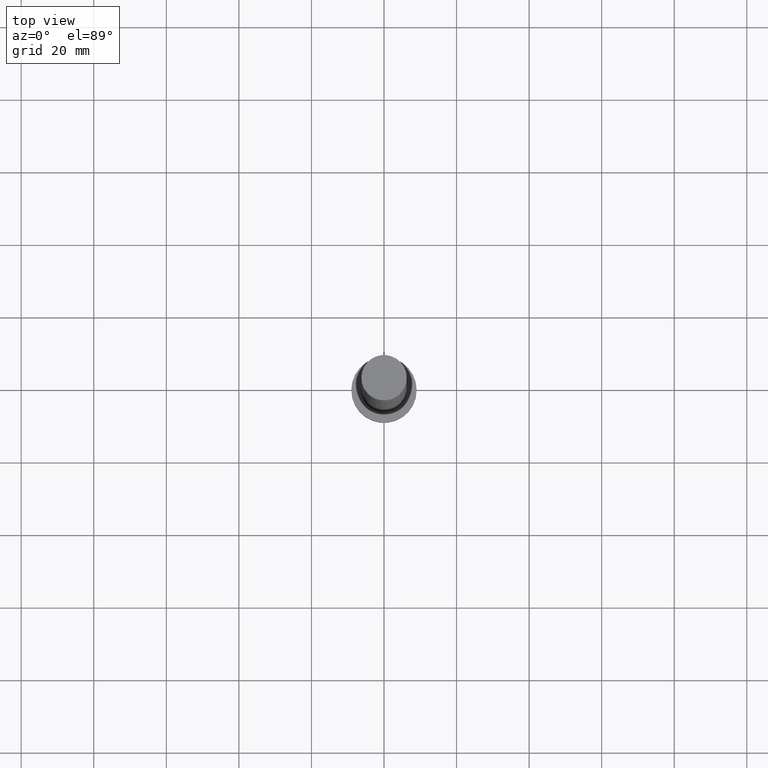
[diagram: clean part render]
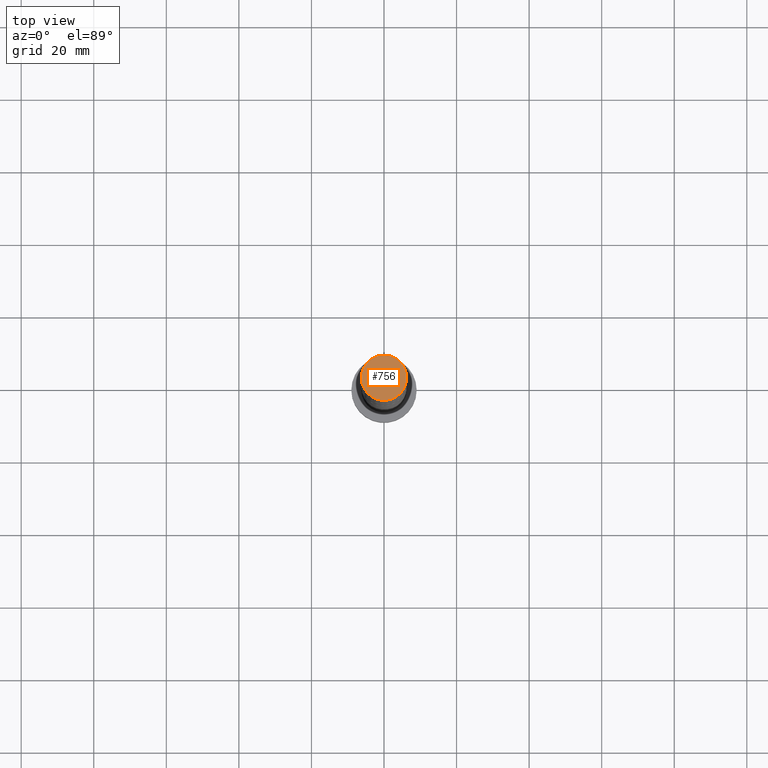
[diagram: same view with one face highlighted and labeled with its STEP entity id]
A machine part, top view. The second image highlights one B-rep face of the part: STEP entity #756.
In plain terms, the highlighted planar face has unit normal (0, 0, 1).
Its self-contained STEP definition (entity closure, byte-faithful):
#135 = EDGE_CURVE ( 'NONE', #982, #1541, #949, .T. ) ;
#209 = AXIS2_PLACEMENT_3D ( 'NONE', #667, #529, #1715 ) ;
#239 = PLANE ( 'NONE',  #209 ) ;
#316 = CIRCLE ( 'NONE', #432, 6.250000000000000000 ) ;
#334 = DIRECTION ( 'NONE',  ( 1.000000000000000000, 0.000000000000000000, 0.000000000000000000 ) ) ;
#379 = FACE_OUTER_BOUND ( 'NONE', #948, .T. ) ;
#432 = AXIS2_PLACEMENT_3D ( 'NONE', #620, #988, #334 ) ;
#451 = DIRECTION ( 'NONE',  ( 1.000000000000000000, 0.000000000000000000, 0.000000000000000000 ) ) ;
#529 = DIRECTION ( 'NONE',  ( 0.000000000000000000, 0.000000000000000000, 1.000000000000000000 ) ) ;
#590 = DIRECTION ( 'NONE',  ( 0.000000000000000000, 0.000000000000000000, 1.000000000000000000 ) ) ;
#620 = CARTESIAN_POINT ( 'NONE',  ( 0.000000000000000000, 0.000000000000000000, 200.0000000000000000 ) ) ;
#667 = CARTESIAN_POINT ( 'NONE',  ( 0.000000000000000000, 0.000000000000000000, 200.0000000000000000 ) ) ;
#681 = CARTESIAN_POINT ( 'NONE',  ( 6.250000000000000000, 7.654042494670957606E-16, 200.0000000000000000 ) ) ;
#749 = AXIS2_PLACEMENT_3D ( 'NONE', #1518, #590, #451 ) ;
#756 = ADVANCED_FACE ( 'NONE', ( #379 ), #239, .T. ) ;
#948 = EDGE_LOOP ( 'NONE', ( #1564, #1024 ) ) ;
#949 = CIRCLE ( 'NONE', #749, 6.250000000000000000 ) ;
#982 = VERTEX_POINT ( 'NONE', #681 ) ;
#988 = DIRECTION ( 'NONE',  ( 0.000000000000000000, 0.000000000000000000, 1.000000000000000000 ) ) ;
#1024 = ORIENTED_EDGE ( 'NONE', *, *, #135, .T. ) ;
#1144 = EDGE_CURVE ( 'NONE', #1541, #982, #316, .T. ) ;
#1518 = CARTESIAN_POINT ( 'NONE',  ( 0.000000000000000000, 0.000000000000000000, 200.0000000000000000 ) ) ;
#1541 = VERTEX_POINT ( 'NONE', #1580 ) ;
#1564 = ORIENTED_EDGE ( 'NONE', *, *, #1144, .T. ) ;
#1580 = CARTESIAN_POINT ( 'NONE',  ( -6.250000000000000000, 0.000000000000000000, 200.0000000000000000 ) ) ;
#1715 = DIRECTION ( 'NONE',  ( 1.000000000000000000, 0.000000000000000000, -0.000000000000000000 ) ) ;